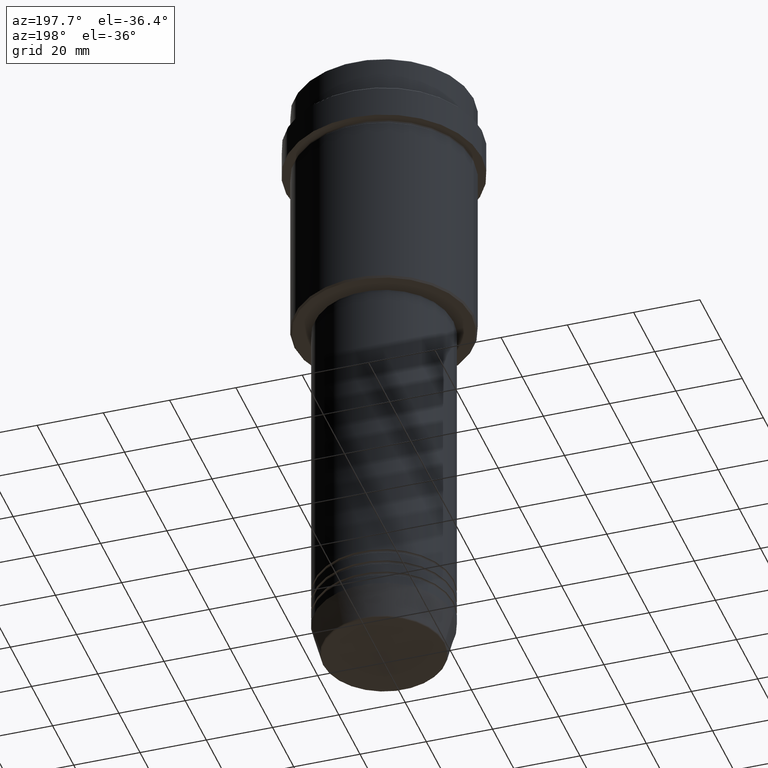
[diagram: clean part render]
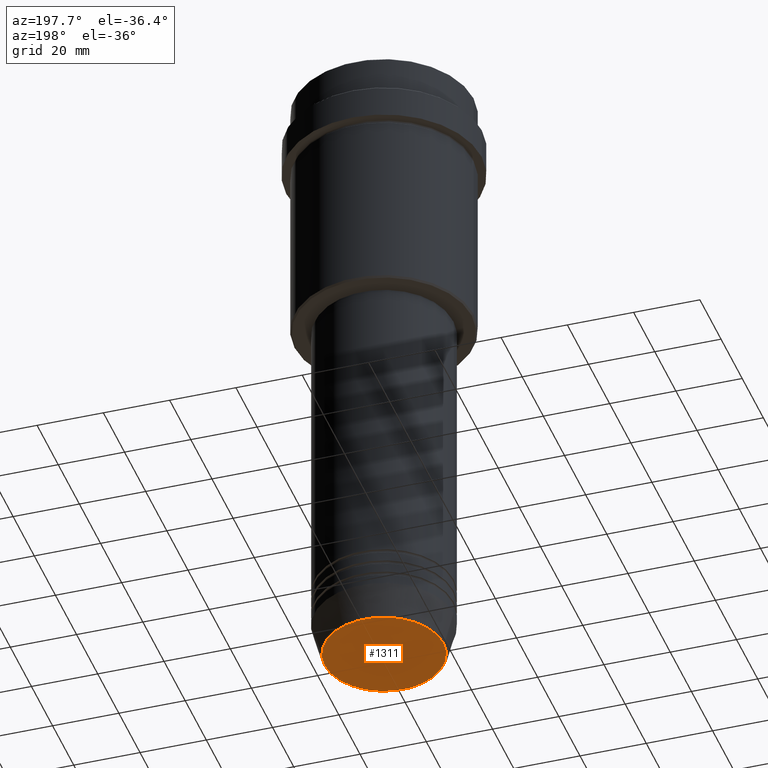
[diagram: same view with one face highlighted and labeled with its STEP entity id]
A machine part, auxiliary view. The second image highlights one B-rep face of the part: STEP entity #1311.
In plain terms, the highlighted planar face has unit normal (0, -0, 1).
Its self-contained STEP definition (entity closure, byte-faithful):
#105 = VERTEX_POINT ( 'NONE', #157 ) ;
#142 = AXIS2_PLACEMENT_3D ( 'NONE', #830, #710, #720 ) ;
#157 = CARTESIAN_POINT ( 'NONE',  ( 17.93684458169929030, 0.000000000000000000, -193.0000000000000000 ) ) ;
#179 = AXIS2_PLACEMENT_3D ( 'NONE', #1108, #788, #334 ) ;
#203 = CIRCLE ( 'NONE', #142, 17.93684458169929030 ) ;
#281 = VERTEX_POINT ( 'NONE', #573 ) ;
#303 = ORIENTED_EDGE ( 'NONE', *, *, #1153, .T. ) ;
#334 = DIRECTION ( 'NONE',  ( 1.000000000000000000, 0.000000000000000000, 0.000000000000000000 ) ) ;
#353 = FACE_OUTER_BOUND ( 'NONE', #1191, .T. ) ;
#480 = EDGE_CURVE ( 'NONE', #281, #105, #923, .T. ) ;
#533 = DIRECTION ( 'NONE',  ( 1.000000000000000000, 0.000000000000000000, 0.000000000000000000 ) ) ;
#573 = CARTESIAN_POINT ( 'NONE',  ( -17.93684458169929030, 2.226202879662624346E-15, -193.0000000000000000 ) ) ;
#710 = DIRECTION ( 'NONE',  ( 0.000000000000000000, 0.000000000000000000, -1.000000000000000000 ) ) ;
#720 = DIRECTION ( 'NONE',  ( 1.000000000000000000, 0.000000000000000000, 0.000000000000000000 ) ) ;
#729 = CARTESIAN_POINT ( 'NONE',  ( 0.000000000000000000, 0.000000000000000000, -193.0000000000000000 ) ) ;
#759 = ORIENTED_EDGE ( 'NONE', *, *, #480, .T. ) ;
#768 = PLANE ( 'NONE',  #179 ) ;
#788 = DIRECTION ( 'NONE',  ( 0.000000000000000000, -0.000000000000000000, 1.000000000000000000 ) ) ;
#830 = CARTESIAN_POINT ( 'NONE',  ( 0.000000000000000000, 0.000000000000000000, -193.0000000000000000 ) ) ;
#923 = CIRCLE ( 'NONE', #1362, 17.93684458169929030 ) ;
#1108 = CARTESIAN_POINT ( 'NONE',  ( 0.000000000000000000, 0.000000000000000000, -193.0000000000000000 ) ) ;
#1153 = EDGE_CURVE ( 'NONE', #105, #281, #203, .T. ) ;
#1191 = EDGE_LOOP ( 'NONE', ( #303, #759 ) ) ;
#1192 = DIRECTION ( 'NONE',  ( 0.000000000000000000, 0.000000000000000000, -1.000000000000000000 ) ) ;
#1311 = ADVANCED_FACE ( 'NONE', ( #353 ), #768, .F. ) ;
#1362 = AXIS2_PLACEMENT_3D ( 'NONE', #729, #1192, #533 ) ;